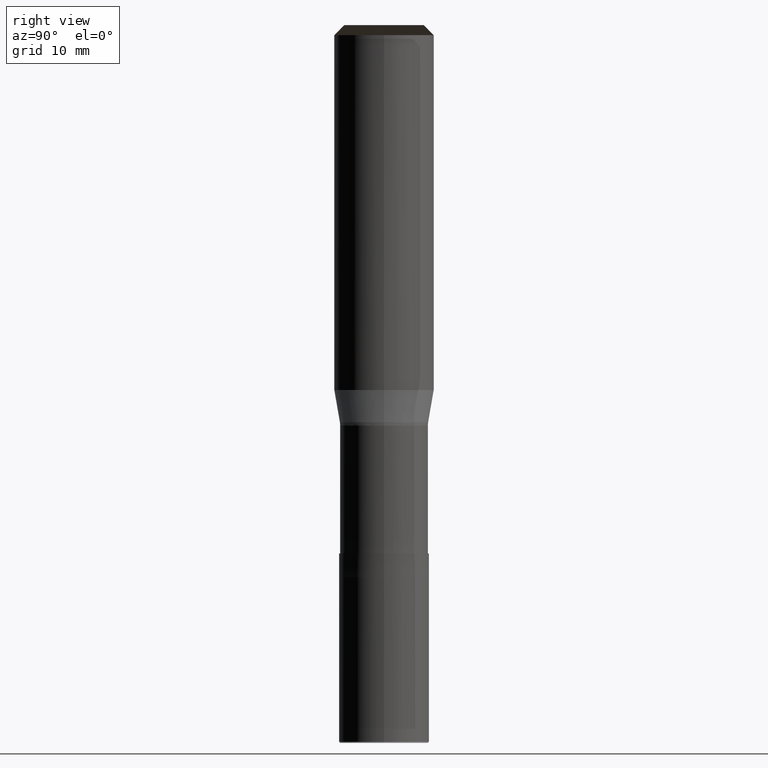
[diagram: clean part render]
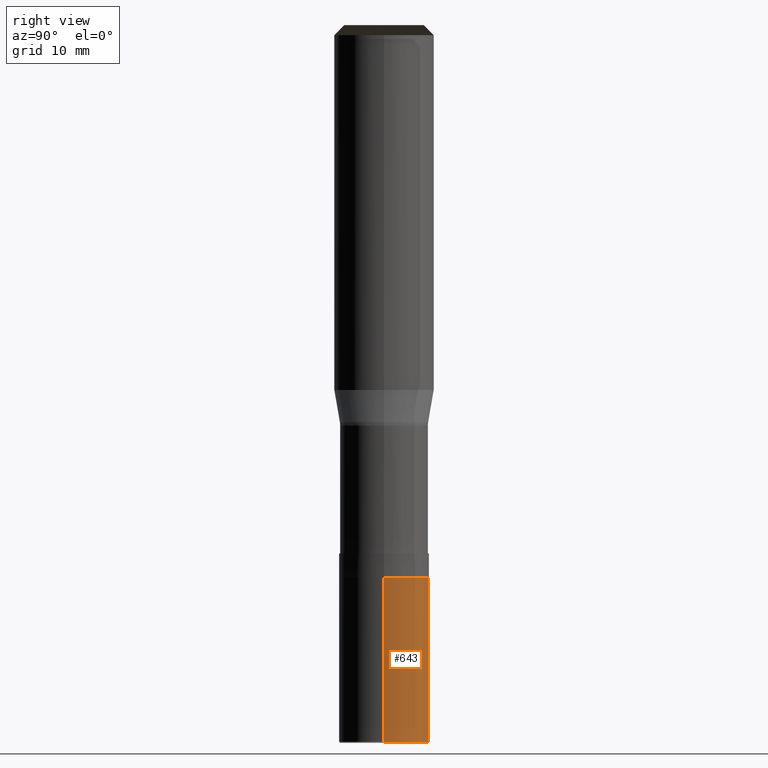
[diagram: same view with one face highlighted and labeled with its STEP entity id]
A machine part, right view. The second image highlights one B-rep face of the part: STEP entity #643.
In plain terms, the highlighted face is a freeform B-spline surface patch.
Its self-contained STEP definition (entity closure, byte-faithful):
#498=CARTESIAN_POINT('',(4.5,0.0,-35.302769091771));
#499=CARTESIAN_POINT('',(4.5,4.5,-35.302769091771));
#500=CARTESIAN_POINT('',(0.0,4.5,-35.302769091771));
#501=CARTESIAN_POINT('',(-4.5,4.5,-35.302769091771));
#502=CARTESIAN_POINT('',(-4.5,0.0,-35.302769091771));
#503=CARTESIAN_POINT('',(4.5,0.0,-18.777769091771));
#504=CARTESIAN_POINT('',(4.5,4.5,-18.777769091771));
#505=CARTESIAN_POINT('',(0.0,4.5,-18.777769091771));
#506=CARTESIAN_POINT('',(-4.5,4.5,-18.777769091771));
#507=CARTESIAN_POINT('',(-4.5,0.0,-18.777769091771));
#624=(
BOUNDED_SURFACE()
B_SPLINE_SURFACE(1,2,(
(#498,#499,#500,#501,#502),
(#503,#504,#505,#506,#507)
), .UNSPECIFIED.,.F.,.F.,.F.)
B_SPLINE_SURFACE_WITH_KNOTS((2,2),(3,2,3),(
0.0,1.0),(
0.0,0.5,1.0), .UNSPECIFIED.)
GEOMETRIC_REPRESENTATION_ITEM()
RATIONAL_B_SPLINE_SURFACE(((1.0,0.707106781187,1.0,0.707106781187,1.0),
(1.0,0.707106781187,1.0,0.707106781187,1.0)
))
REPRESENTATION_ITEM('')
SURFACE()
);
#625=(
BOUNDED_CURVE()
B_SPLINE_CURVE(2,(#502,#501,#500,#499,#498),.UNSPECIFIED.,.F.,.F.)
B_SPLINE_CURVE_WITH_KNOTS((3,2,3),
(0.0,0.5,1.0),.UNSPECIFIED.)
CURVE()
GEOMETRIC_REPRESENTATION_ITEM()
RATIONAL_B_SPLINE_CURVE((1.0,0.707106781187,1.0,0.707106781187,1.0))
REPRESENTATION_ITEM('')
);
#626=(
BOUNDED_CURVE()
B_SPLINE_CURVE(1,(#498,#503),.UNSPECIFIED.,.F.,.F.)
B_SPLINE_CURVE_WITH_KNOTS((2,2),
(0.0,1.0),.UNSPECIFIED.)
CURVE()
GEOMETRIC_REPRESENTATION_ITEM()
RATIONAL_B_SPLINE_CURVE((1.0,1.0))
REPRESENTATION_ITEM('')
);
#627=(
BOUNDED_CURVE()
B_SPLINE_CURVE(2,(#503,#504,#505,#506,#507),.UNSPECIFIED.,.F.,.F.)
B_SPLINE_CURVE_WITH_KNOTS((3,2,3),
(0.0,0.5,1.0),.UNSPECIFIED.)
CURVE()
GEOMETRIC_REPRESENTATION_ITEM()
RATIONAL_B_SPLINE_CURVE((1.0,0.707106781187,1.0,0.707106781187,1.0))
REPRESENTATION_ITEM('')
);
#628=(
BOUNDED_CURVE()
B_SPLINE_CURVE(1,(#507,#502),.UNSPECIFIED.,.F.,.F.)
B_SPLINE_CURVE_WITH_KNOTS((2,2),
(0.0,1.0),.UNSPECIFIED.)
CURVE()
GEOMETRIC_REPRESENTATION_ITEM()
RATIONAL_B_SPLINE_CURVE((1.0,1.0))
REPRESENTATION_ITEM('')
);
#629=VERTEX_POINT('',#498);
#630=VERTEX_POINT('',#502);
#631=VERTEX_POINT('',#503);
#632=VERTEX_POINT('',#507);
#633=EDGE_CURVE('',#630,#629,#625,.T.);
#634=EDGE_CURVE('',#629,#631,#626,.T.);
#635=EDGE_CURVE('',#631,#632,#627,.T.);
#636=EDGE_CURVE('',#632,#630,#628,.T.);
#637=ORIENTED_EDGE('',*,*,#633,.T.);
#638=ORIENTED_EDGE('',*,*,#634,.T.);
#639=ORIENTED_EDGE('',*,*,#635,.T.);
#640=ORIENTED_EDGE('',*,*,#636,.T.);
#641=EDGE_LOOP('',(#637,#638,#639,#640));
#642=FACE_OUTER_BOUND('',#641,.T.);
#643=ADVANCED_FACE('',(#642),#624,.T.);